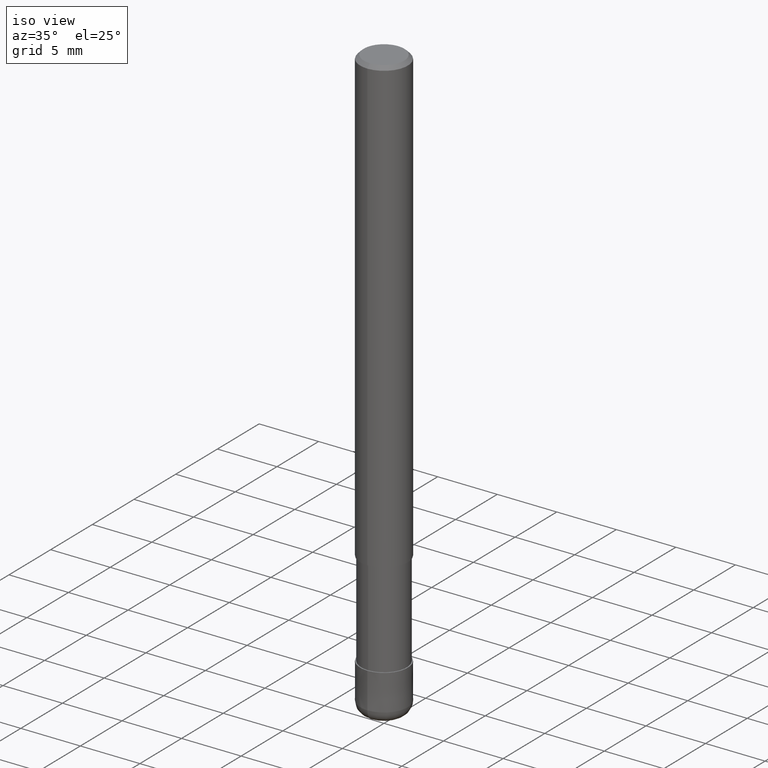
[diagram: clean part render]
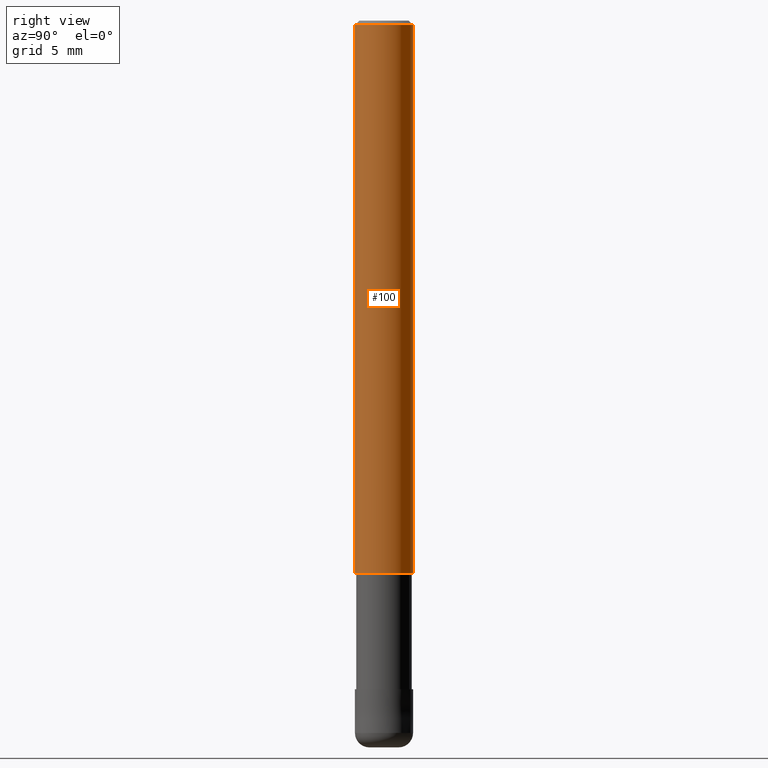
[diagram: tour spotlight — one face highlighted and labeled with its STEP entity id]
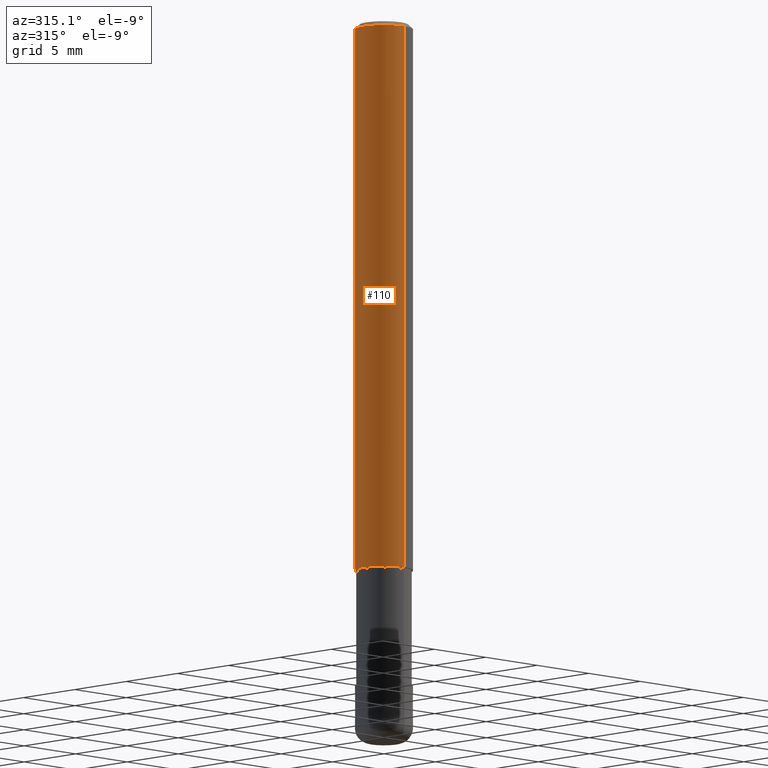
[diagram: tour spotlight — one face highlighted and labeled with its STEP entity id]
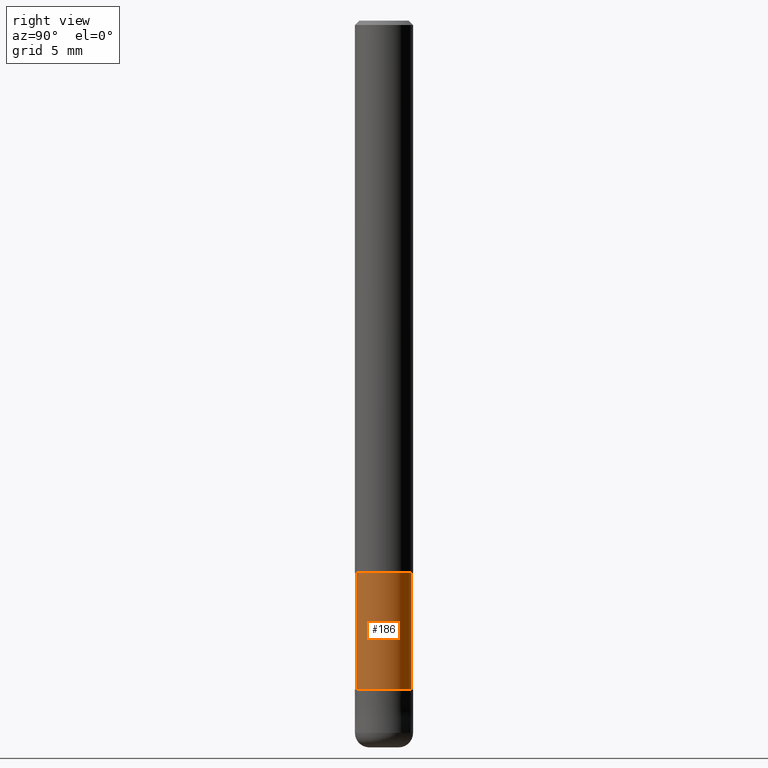
[diagram: tour spotlight — one face highlighted and labeled with its STEP entity id]
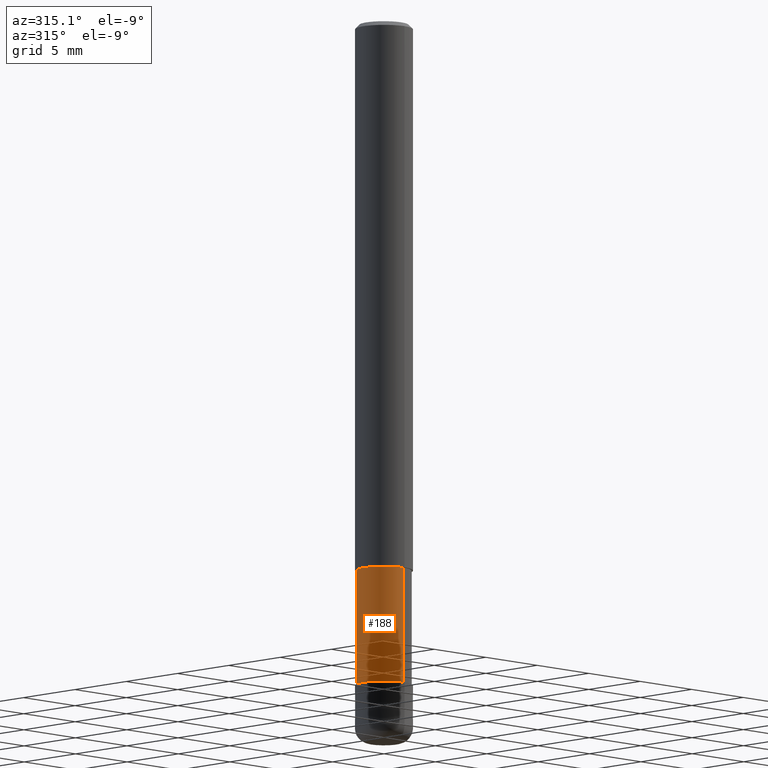
[diagram: tour spotlight — one face highlighted and labeled with its STEP entity id]
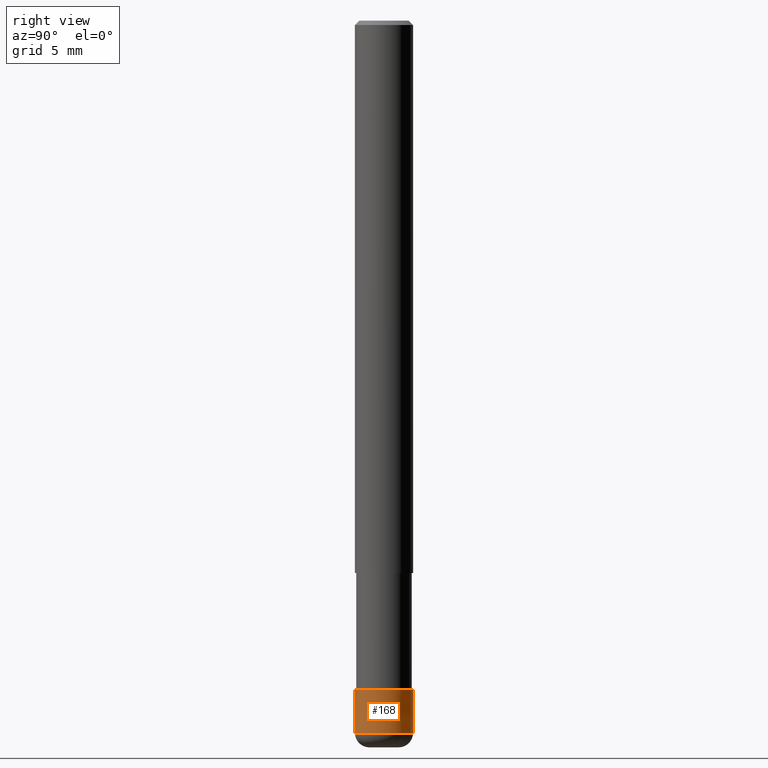
[diagram: tour spotlight — one face highlighted and labeled with its STEP entity id]
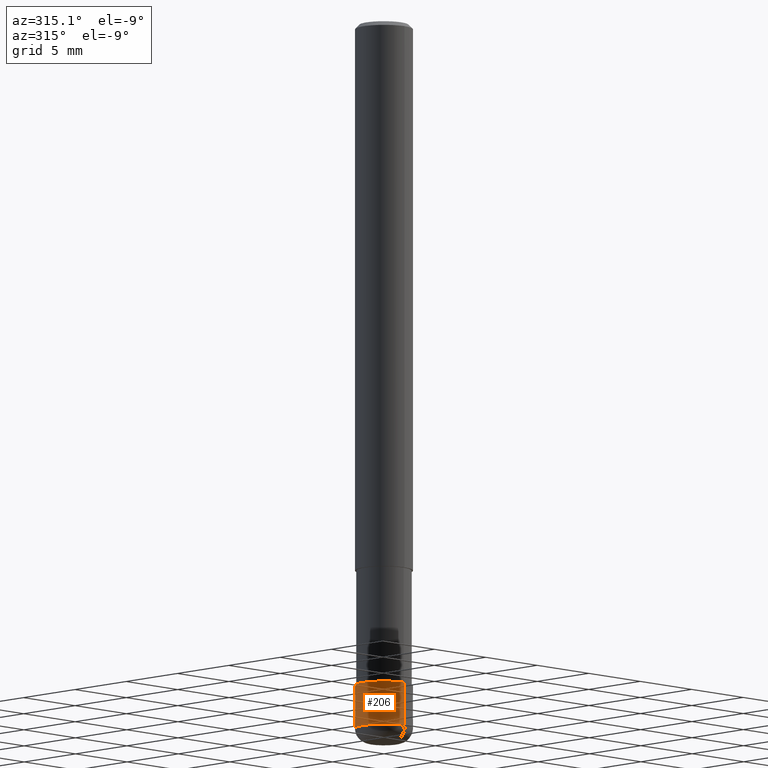
[diagram: tour spotlight — one face highlighted and labeled with its STEP entity id]
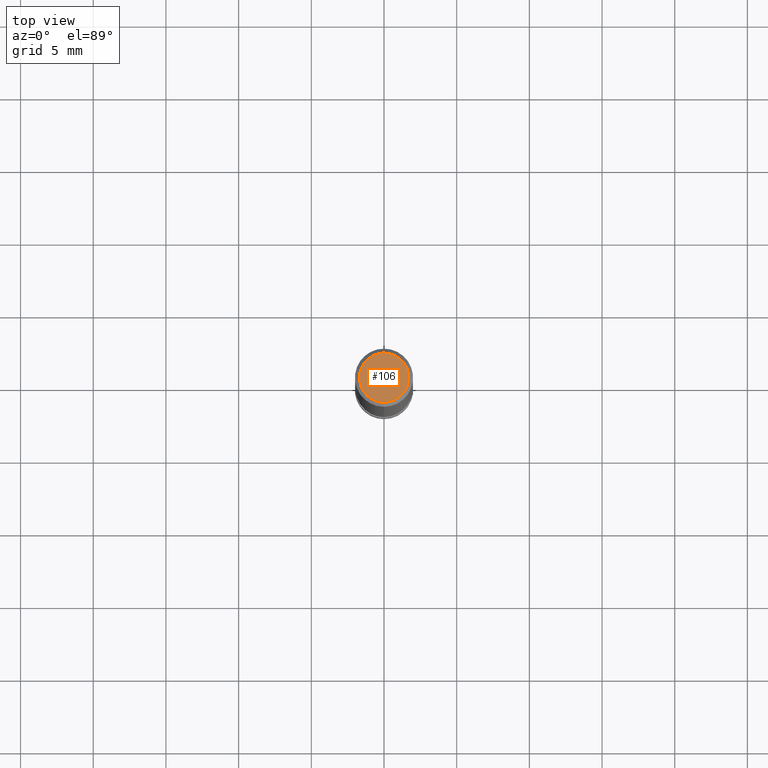
[diagram: tour spotlight — one face highlighted and labeled with its STEP entity id]
A machine part: a face-by-face anatomy tour. The part has 15 B-rep faces; the first image is the clean iso view, then the 7 largest visible faces are spotlighted one at a time (largest first), each with its STEP entity span.

Face 1 — right view, entity #100. In plain terms, the highlighted cylindrical surface (edge-blend (fillet) strip) has radius 2 mm, axis along (-0, -0, 1).
Definition (entity closure, byte-faithful):
#100=ADVANCED_FACE('',(#240),#241,.T.);
#114=VERTEX_POINT('',#259);
#116=EDGE_CURVE('',#114,#190,#261,.T.);
#142=EDGE_CURVE('',#166,#176,#289,.T.);
#166=VERTEX_POINT('',#313);
#176=VERTEX_POINT('',#326);
#178=EDGE_CURVE('',#166,#114,#328,.T.);
#190=VERTEX_POINT('',#342);
#200=EDGE_CURVE('',#190,#176,#352,.T.);
#240=FACE_OUTER_BOUND('',#389,.T.);
#241=CYLINDRICAL_SURFACE('',#390,2.0);
#259=CARTESIAN_POINT('',(0.0,2.0,-38.0));
#261=CIRCLE('',#412,2.0);
#289=CIRCLE('',#448,2.0);
#313=CARTESIAN_POINT('',(0.0,2.0,-0.299999999999997));
#326=CARTESIAN_POINT('',(2.44921270764475E-016,-2.0,-0.299999999999997));
#328=LINE('',#494,#495);
#342=CARTESIAN_POINT('',(2.44921270764475E-016,-2.0,-38.0));
#352=LINE('',#526,#527);
#389=EDGE_LOOP('',(#559,#560,#561,#562));
#390=AXIS2_PLACEMENT_3D('',#563,#564,#565);
#412=AXIS2_PLACEMENT_3D('',#597,#598,#599);
#448=AXIS2_PLACEMENT_3D('',#629,#630,#631);
#494=CARTESIAN_POINT('',(-2.44921270764475E-016,2.0,-19.15));
#495=VECTOR('',#671,1.0);
#526=CARTESIAN_POINT('',(2.44921270764475E-016,-2.0,-19.15));
#527=VECTOR('',#701,1.0);
#559=ORIENTED_EDGE('',*,*,#178,.F.);
#560=ORIENTED_EDGE('',*,*,#142,.T.);
#561=ORIENTED_EDGE('',*,*,#200,.F.);
#562=ORIENTED_EDGE('',*,*,#116,.F.);
#563=CARTESIAN_POINT('',(0.0,0.0,-19.15));
#564=DIRECTION('',(-0.0,-0.0,1.0));
#565=DIRECTION('',(0.0,1.0,0.0));
#597=CARTESIAN_POINT('',(0.0,0.0,-38.0));
#598=DIRECTION('',(0.0,0.0,-1.0));
#599=DIRECTION('',(0.0,1.0,0.0));
#629=CARTESIAN_POINT('',(0.0,0.0,-0.299999999999997));
#630=DIRECTION('',(0.0,0.0,-1.0));
#631=DIRECTION('',(0.0,1.0,0.0));
#671=DIRECTION('',(0.0,0.0,-1.0));
#701=DIRECTION('',(-0.0,-0.0,1.0));

Face 2 — auxiliary view, entity #110. In plain terms, the highlighted cylindrical surface (edge-blend (fillet) strip) has radius 2 mm, axis along (-0, -0, 1).
Definition (entity closure, byte-faithful):
#110=ADVANCED_FACE('',(#254),#255,.T.);
#114=VERTEX_POINT('',#259);
#126=EDGE_CURVE('',#190,#114,#271,.T.);
#166=VERTEX_POINT('',#313);
#176=VERTEX_POINT('',#326);
#178=EDGE_CURVE('',#166,#114,#328,.T.);
#184=EDGE_CURVE('',#176,#166,#334,.T.);
#190=VERTEX_POINT('',#342);
#200=EDGE_CURVE('',#190,#176,#352,.T.);
#254=FACE_OUTER_BOUND('',#404,.T.);
#255=CYLINDRICAL_SURFACE('',#405,2.0);
#259=CARTESIAN_POINT('',(0.0,2.0,-38.0));
#271=CIRCLE('',#425,2.0);
#313=CARTESIAN_POINT('',(0.0,2.0,-0.299999999999997));
#326=CARTESIAN_POINT('',(2.44921270764475E-016,-2.0,-0.299999999999997));
#328=LINE('',#494,#495);
#334=CIRCLE('',#502,2.0);
#342=CARTESIAN_POINT('',(2.44921270764475E-016,-2.0,-38.0));
#352=LINE('',#526,#527);
#404=EDGE_LOOP('',(#590,#591,#592,#593));
#405=AXIS2_PLACEMENT_3D('',#594,#595,#596);
#425=AXIS2_PLACEMENT_3D('',#605,#606,#607);
#494=CARTESIAN_POINT('',(-2.44921270764475E-016,2.0,-19.15));
#495=VECTOR('',#671,1.0);
#502=AXIS2_PLACEMENT_3D('',#672,#673,#674);
#526=CARTESIAN_POINT('',(2.44921270764475E-016,-2.0,-19.15));
#527=VECTOR('',#701,1.0);
#590=ORIENTED_EDGE('',*,*,#178,.T.);
#591=ORIENTED_EDGE('',*,*,#126,.F.);
#592=ORIENTED_EDGE('',*,*,#200,.T.);
#593=ORIENTED_EDGE('',*,*,#184,.T.);
#594=CARTESIAN_POINT('',(0.0,0.0,-19.15));
#595=DIRECTION('',(-0.0,-0.0,1.0));
#596=DIRECTION('',(0.0,1.0,0.0));
#605=CARTESIAN_POINT('',(0.0,0.0,-38.0));
#606=DIRECTION('',(0.0,0.0,-1.0));
#607=DIRECTION('',(0.0,1.0,0.0));
#671=DIRECTION('',(0.0,0.0,-1.0));
#672=CARTESIAN_POINT('',(0.0,0.0,-0.299999999999997));
#673=DIRECTION('',(0.0,0.0,-1.0));
#674=DIRECTION('',(0.0,1.0,0.0));
#701=DIRECTION('',(-0.0,-0.0,1.0));

Face 3 — right view, entity #186. In plain terms, the highlighted cylindrical surface (edge-blend (fillet) strip) has radius 1.91 mm, axis along (-0, -0, 1).
Definition (entity closure, byte-faithful):
#96=EDGE_CURVE('',#160,#204,#235,.T.);
#104=EDGE_CURVE('',#160,#182,#246,.T.);
#152=EDGE_CURVE('',#154,#182,#299,.T.);
#154=VERTEX_POINT('',#301);
#160=VERTEX_POINT('',#307);
#172=EDGE_CURVE('',#204,#154,#321,.T.);
#182=VERTEX_POINT('',#332);
#186=ADVANCED_FACE('',(#336),#337,.T.);
#204=VERTEX_POINT('',#356);
#235=LINE('',#383,#384);
#246=CIRCLE('',#396,1.90995);
#299=LINE('',#460,#461);
#301=CARTESIAN_POINT('',(2.33893690548305E-016,-1.90995,-46.0));
#307=CARTESIAN_POINT('',(0.0,1.90995,-38.0));
#321=CIRCLE('',#486,1.90995);
#332=CARTESIAN_POINT('',(2.33893690548305E-016,-1.90995,-38.0));
#336=FACE_OUTER_BOUND('',#504,.T.);
#337=CYLINDRICAL_SURFACE('',#505,1.90995);
#356=CARTESIAN_POINT('',(0.0,1.90995,-46.0));
#383=CARTESIAN_POINT('',(-2.33893690548305E-016,1.90995,-42.0));
#384=VECTOR('',#549,1.0);
#396=AXIS2_PLACEMENT_3D('',#572,#573,#574);
#460=CARTESIAN_POINT('',(2.33893690548305E-016,-1.90995,-42.0));
#461=VECTOR('',#639,1.0);
#486=AXIS2_PLACEMENT_3D('',#660,#661,#662);
#504=EDGE_LOOP('',(#676,#677,#678,#679));
#505=AXIS2_PLACEMENT_3D('',#680,#681,#682);
#549=DIRECTION('',(0.0,0.0,-1.0));
#572=CARTESIAN_POINT('',(0.0,0.0,-38.0));
#573=DIRECTION('',(0.0,0.0,-1.0));
#574=DIRECTION('',(0.0,1.0,0.0));
#639=DIRECTION('',(-0.0,-0.0,1.0));
#660=CARTESIAN_POINT('',(0.0,0.0,-46.0));
#661=DIRECTION('',(0.0,0.0,-1.0));
#662=DIRECTION('',(0.0,1.0,0.0));
#676=ORIENTED_EDGE('',*,*,#96,.F.);
#677=ORIENTED_EDGE('',*,*,#104,.T.);
#678=ORIENTED_EDGE('',*,*,#152,.F.);
#679=ORIENTED_EDGE('',*,*,#172,.F.);
#680=CARTESIAN_POINT('',(0.0,0.0,-42.0));
#681=DIRECTION('',(-0.0,-0.0,1.0));
#682=DIRECTION('',(0.0,1.0,0.0));

Face 4 — auxiliary view, entity #188. In plain terms, the highlighted cylindrical surface (edge-blend (fillet) strip) has radius 1.91 mm, axis along (-0, -0, 1).
Definition (entity closure, byte-faithful):
#96=EDGE_CURVE('',#160,#204,#235,.T.);
#120=EDGE_CURVE('',#182,#160,#265,.T.);
#152=EDGE_CURVE('',#154,#182,#299,.T.);
#154=VERTEX_POINT('',#301);
#160=VERTEX_POINT('',#307);
#182=VERTEX_POINT('',#332);
#188=ADVANCED_FACE('',(#339),#340,.T.);
#194=EDGE_CURVE('',#154,#204,#346,.T.);
#204=VERTEX_POINT('',#356);
#235=LINE('',#383,#384);
#265=CIRCLE('',#416,1.90995);
#299=LINE('',#460,#461);
#301=CARTESIAN_POINT('',(2.33893690548305E-016,-1.90995,-46.0));
#307=CARTESIAN_POINT('',(0.0,1.90995,-38.0));
#332=CARTESIAN_POINT('',(2.33893690548305E-016,-1.90995,-38.0));
#339=FACE_OUTER_BOUND('',#507,.T.);
#340=CYLINDRICAL_SURFACE('',#508,1.90995);
#346=CIRCLE('',#517,1.90995);
#356=CARTESIAN_POINT('',(0.0,1.90995,-46.0));
#383=CARTESIAN_POINT('',(-2.33893690548305E-016,1.90995,-42.0));
#384=VECTOR('',#549,1.0);
#416=AXIS2_PLACEMENT_3D('',#601,#602,#603);
#460=CARTESIAN_POINT('',(2.33893690548305E-016,-1.90995,-42.0));
#461=VECTOR('',#639,1.0);
#507=EDGE_LOOP('',(#684,#685,#686,#687));
#508=AXIS2_PLACEMENT_3D('',#688,#689,#690);
#517=AXIS2_PLACEMENT_3D('',#692,#693,#694);
#549=DIRECTION('',(0.0,0.0,-1.0));
#601=CARTESIAN_POINT('',(0.0,0.0,-38.0));
#602=DIRECTION('',(0.0,0.0,-1.0));
#603=DIRECTION('',(0.0,1.0,0.0));
#639=DIRECTION('',(-0.0,-0.0,1.0));
#684=ORIENTED_EDGE('',*,*,#96,.T.);
#685=ORIENTED_EDGE('',*,*,#194,.F.);
#686=ORIENTED_EDGE('',*,*,#152,.T.);
#687=ORIENTED_EDGE('',*,*,#120,.T.);
#688=CARTESIAN_POINT('',(0.0,0.0,-42.0));
#689=DIRECTION('',(-0.0,-0.0,1.0));
#690=DIRECTION('',(0.0,1.0,0.0));
#692=CARTESIAN_POINT('',(0.0,0.0,-46.0));
#693=DIRECTION('',(0.0,0.0,-1.0));
#694=DIRECTION('',(0.0,1.0,0.0));

Face 5 — right view, entity #168. In plain terms, the highlighted conical surface has half-angle 0.002 deg.
Definition (entity closure, byte-faithful):
#92=EDGE_CURVE('',#150,#138,#229,.T.);
#122=EDGE_CURVE('',#124,#180,#267,.T.);
#124=VERTEX_POINT('',#269);
#138=VERTEX_POINT('',#285);
#146=EDGE_CURVE('',#124,#138,#293,.T.);
#150=VERTEX_POINT('',#297);
#168=ADVANCED_FACE('',(#315),#316,.T.);
#180=VERTEX_POINT('',#330);
#196=EDGE_CURVE('',#180,#150,#348,.T.);
#229=LINE('',#375,#376);
#267=LINE('',#419,#420);
#269=CARTESIAN_POINT('',(0.0,1.9999,-46.0));
#285=CARTESIAN_POINT('',(2.44909024700937E-016,-1.9999,-46.0));
#293=CIRCLE('',#452,1.9999);
#297=CARTESIAN_POINT('',(2.44921270764475E-016,-2.0,-49.0));
#315=FACE_OUTER_BOUND('',#479,.T.);
#316=CONICAL_SURFACE('',#480,1.99995,3.3333333320984E-005);
#330=CARTESIAN_POINT('',(0.0,2.0,-49.0));
#348=CIRCLE('',#520,2.0);
#375=CARTESIAN_POINT('',(2.44915147732706E-016,-1.99995,-47.5));
#376=VECTOR('',#540,1.0);
#419=CARTESIAN_POINT('',(-2.44915147732706E-016,1.99995,-47.5));
#420=VECTOR('',#604,1.0);
#452=AXIS2_PLACEMENT_3D('',#633,#634,#635);
#479=EDGE_LOOP('',(#647,#648,#649,#650));
#480=AXIS2_PLACEMENT_3D('',#651,#652,#653);
#520=AXIS2_PLACEMENT_3D('',#695,#696,#697);
#540=DIRECTION('',(-4.08202117713969E-021,3.33333333148111E-005,0.999999999444445));
#604=DIRECTION('',(-4.08202117713969E-021,3.33333333148111E-005,-0.999999999444445));
#633=CARTESIAN_POINT('',(0.0,0.0,-46.0));
#634=DIRECTION('',(0.0,0.0,-1.0));
#635=DIRECTION('',(0.0,1.0,0.0));
#647=ORIENTED_EDGE('',*,*,#122,.F.);
#648=ORIENTED_EDGE('',*,*,#146,.T.);
#649=ORIENTED_EDGE('',*,*,#92,.F.);
#650=ORIENTED_EDGE('',*,*,#196,.F.);
#651=CARTESIAN_POINT('',(0.0,0.0,-47.5));
#652=DIRECTION('',(0.0,-0.0,-1.0));
#653=DIRECTION('',(0.0,1.0,0.0));
#695=CARTESIAN_POINT('',(0.0,0.0,-49.0));
#696=DIRECTION('',(0.0,0.0,-1.0));
#697=DIRECTION('',(0.0,1.0,0.0));

Face 6 — auxiliary view, entity #206. In plain terms, the highlighted conical surface has half-angle 0.002 deg.
Definition (entity closure, byte-faithful):
#92=EDGE_CURVE('',#150,#138,#229,.T.);
#122=EDGE_CURVE('',#124,#180,#267,.T.);
#124=VERTEX_POINT('',#269);
#138=VERTEX_POINT('',#285);
#148=EDGE_CURVE('',#138,#124,#295,.T.);
#150=VERTEX_POINT('',#297);
#158=EDGE_CURVE('',#150,#180,#305,.T.);
#180=VERTEX_POINT('',#330);
#206=ADVANCED_FACE('',(#358),#359,.T.);
#229=LINE('',#375,#376);
#267=LINE('',#419,#420);
#269=CARTESIAN_POINT('',(0.0,1.9999,-46.0));
#285=CARTESIAN_POINT('',(2.44909024700937E-016,-1.9999,-46.0));
#295=CIRCLE('',#455,1.9999);
#297=CARTESIAN_POINT('',(2.44921270764475E-016,-2.0,-49.0));
#305=CIRCLE('',#469,2.0);
#330=CARTESIAN_POINT('',(0.0,2.0,-49.0));
#358=FACE_OUTER_BOUND('',#534,.T.);
#359=CONICAL_SURFACE('',#535,1.99995,3.3333333320984E-005);
#375=CARTESIAN_POINT('',(2.44915147732706E-016,-1.99995,-47.5));
#376=VECTOR('',#540,1.0);
#419=CARTESIAN_POINT('',(-2.44915147732706E-016,1.99995,-47.5));
#420=VECTOR('',#604,1.0);
#455=AXIS2_PLACEMENT_3D('',#636,#637,#638);
#469=AXIS2_PLACEMENT_3D('',#643,#644,#645);
#534=EDGE_LOOP('',(#706,#707,#708,#709));
#535=AXIS2_PLACEMENT_3D('',#710,#711,#712);
#540=DIRECTION('',(-4.08202117713969E-021,3.33333333148111E-005,0.999999999444445));
#604=DIRECTION('',(-4.08202117713969E-021,3.33333333148111E-005,-0.999999999444445));
#636=CARTESIAN_POINT('',(0.0,0.0,-46.0));
#637=DIRECTION('',(0.0,0.0,-1.0));
#638=DIRECTION('',(0.0,1.0,0.0));
#643=CARTESIAN_POINT('',(0.0,0.0,-49.0));
#644=DIRECTION('',(0.0,0.0,-1.0));
#645=DIRECTION('',(0.0,1.0,0.0));
#706=ORIENTED_EDGE('',*,*,#122,.T.);
#707=ORIENTED_EDGE('',*,*,#158,.F.);
#708=ORIENTED_EDGE('',*,*,#92,.T.);
#709=ORIENTED_EDGE('',*,*,#148,.T.);
#710=CARTESIAN_POINT('',(0.0,0.0,-47.5));
#711=DIRECTION('',(0.0,-0.0,-1.0));
#712=DIRECTION('',(0.0,1.0,0.0));

Face 7 — top view, entity #106. In plain terms, the highlighted planar face has unit normal (-0, 0, 1).
Definition (entity closure, byte-faithful):
#106=ADVANCED_FACE('',(#248),#249,.T.);
#128=EDGE_CURVE('',#134,#164,#273,.T.);
#134=VERTEX_POINT('',#280);
#164=VERTEX_POINT('',#311);
#208=EDGE_CURVE('',#164,#134,#361,.T.);
#248=FACE_OUTER_BOUND('',#398,.T.);
#249=PLANE('',#399);
#273=CIRCLE('',#428,1.7);
#280=CARTESIAN_POINT('',(0.0,1.7,0.0));
#311=CARTESIAN_POINT('',(2.08183080149804E-016,-1.7,0.0));
#361=CIRCLE('',#538,1.7);
#398=EDGE_LOOP('',(#576,#577));
#399=AXIS2_PLACEMENT_3D('',#578,#579,#580);
#428=AXIS2_PLACEMENT_3D('',#608,#609,#610);
#538=AXIS2_PLACEMENT_3D('',#713,#714,#715);
#576=ORIENTED_EDGE('',*,*,#128,.F.);
#577=ORIENTED_EDGE('',*,*,#208,.F.);
#578=CARTESIAN_POINT('',(0.0,0.85,0.0));
#579=DIRECTION('',(-0.0,0.0,1.0));
#580=DIRECTION('',(0.0,-1.0,0.0));
#608=CARTESIAN_POINT('',(0.0,0.0,0.0));
#609=DIRECTION('',(0.0,0.0,-1.0));
#610=DIRECTION('',(0.0,1.0,0.0));
#713=CARTESIAN_POINT('',(0.0,0.0,0.0));
#714=DIRECTION('',(0.0,0.0,-1.0));
#715=DIRECTION('',(0.0,1.0,0.0));